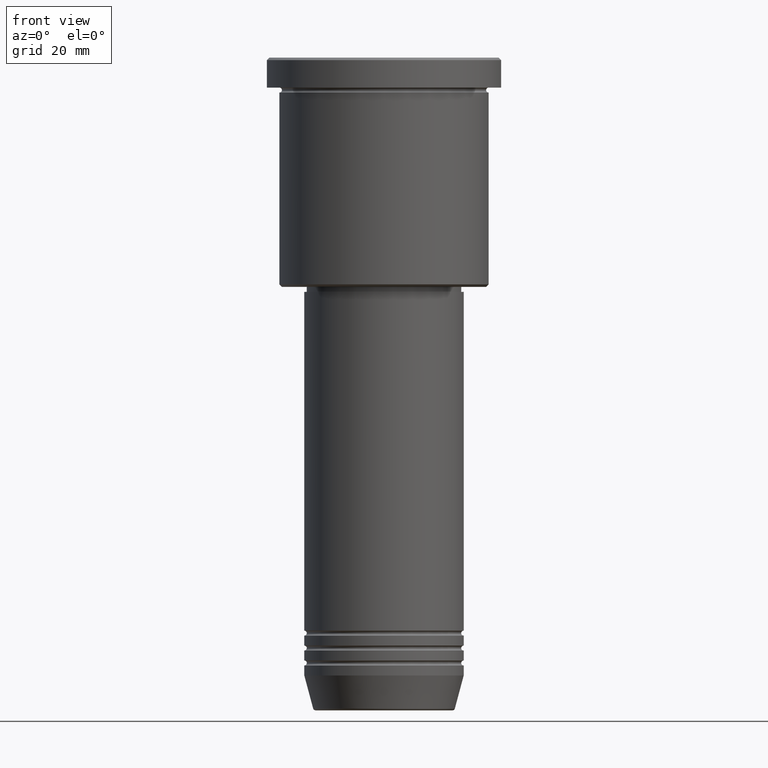
[diagram: clean part render]
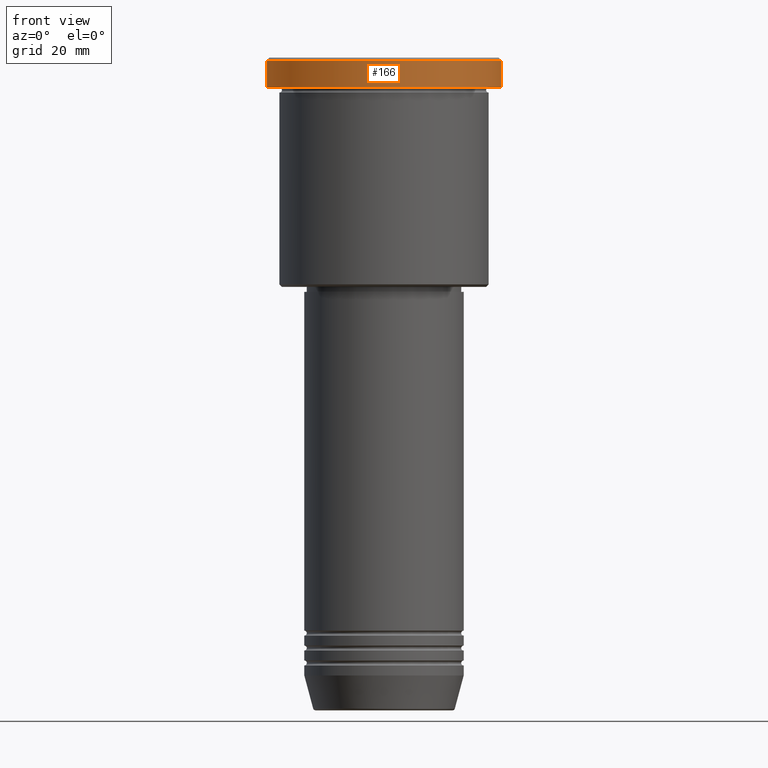
[diagram: same view with one face highlighted and labeled with its STEP entity id]
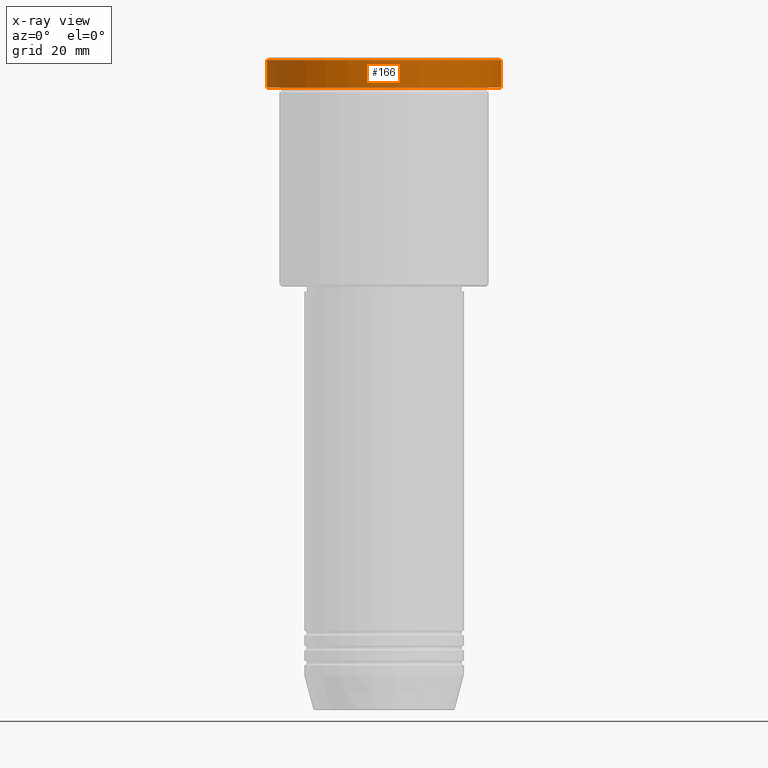
[diagram: x-ray of the same camera — body ghosted, the highlighted face saturated]
A machine part, front view. The second image highlights one B-rep face of the part: STEP entity #166.
The next image is the same camera in x-ray: the body ghosted, the highlighted face saturated — about 0% of this face is hidden behind the body in this view.
In plain terms, the highlighted cylindrical surface (partial cylindrical patch) has radius 23.5 mm, axis along (-0, -0, 1).
Its self-contained STEP definition (entity closure, byte-faithful):
#80 = VECTOR ( 'NONE', #200, 1000.000000000000000 ) ;
#84 = ORIENTED_EDGE ( 'NONE', *, *, #848, .F. ) ;
#87 = EDGE_CURVE ( 'NONE', #444, #761, #343, .T. ) ;
#166 = ADVANCED_FACE ( 'NONE', ( #775 ), #319, .T. ) ;
#182 = CARTESIAN_POINT ( 'NONE',  ( -23.50000000000000000, 2.877919977996280320E-15, -0.5000000000000143219 ) ) ;
#200 = DIRECTION ( 'NONE',  ( -0.000000000000000000, -0.000000000000000000, 1.000000000000000000 ) ) ;
#319 = CYLINDRICAL_SURFACE ( 'NONE', #512, 23.50000000000000000 ) ;
#343 = LINE ( 'NONE', #362, #450 ) ;
#362 = CARTESIAN_POINT ( 'NONE',  ( 23.50000000000000000, 0.000000000000000000, 0.000000000000000000 ) ) ;
#413 = CARTESIAN_POINT ( 'NONE',  ( -23.50000000000000000, 2.877919977996280320E-15, -5.999999999999994671 ) ) ;
#420 = DIRECTION ( 'NONE',  ( 1.000000000000000000, 0.000000000000000000, 0.000000000000000000 ) ) ;
#444 = VERTEX_POINT ( 'NONE', #497 ) ;
#450 = VECTOR ( 'NONE', #1164, 1000.000000000000000 ) ;
#465 = EDGE_CURVE ( 'NONE', #962, #444, #1001, .T. ) ;
#489 = AXIS2_PLACEMENT_3D ( 'NONE', #1182, #626, #420 ) ;
#493 = DIRECTION ( 'NONE',  ( 1.000000000000000000, 0.000000000000000000, 0.000000000000000000 ) ) ;
#497 = CARTESIAN_POINT ( 'NONE',  ( 23.50000000000000000, 0.000000000000000000, -5.999999999999994671 ) ) ;
#512 = AXIS2_PLACEMENT_3D ( 'NONE', #1144, #1044, #879 ) ;
#544 = CIRCLE ( 'NONE', #895, 23.50000000000000000 ) ;
#626 = DIRECTION ( 'NONE',  ( -0.000000000000000000, -0.000000000000000000, 1.000000000000000000 ) ) ;
#670 = VERTEX_POINT ( 'NONE', #182 ) ;
#760 = LINE ( 'NONE', #862, #80 ) ;
#761 = VERTEX_POINT ( 'NONE', #924 ) ;
#775 = FACE_OUTER_BOUND ( 'NONE', #1052, .T. ) ;
#800 = ORIENTED_EDGE ( 'NONE', *, *, #829, .T. ) ;
#829 = EDGE_CURVE ( 'NONE', #761, #670, #544, .T. ) ;
#848 = EDGE_CURVE ( 'NONE', #962, #670, #760, .T. ) ;
#862 = CARTESIAN_POINT ( 'NONE',  ( -23.50000000000000000, 2.877919977996280320E-15, 0.000000000000000000 ) ) ;
#879 = DIRECTION ( 'NONE',  ( 1.000000000000000000, 0.000000000000000000, 0.000000000000000000 ) ) ;
#895 = AXIS2_PLACEMENT_3D ( 'NONE', #936, #964, #493 ) ;
#904 = ORIENTED_EDGE ( 'NONE', *, *, #465, .T. ) ;
#924 = CARTESIAN_POINT ( 'NONE',  ( 23.50000000000000000, 0.000000000000000000, -0.5000000000000143219 ) ) ;
#936 = CARTESIAN_POINT ( 'NONE',  ( 0.000000000000000000, 0.000000000000000000, -0.5000000000000143219 ) ) ;
#962 = VERTEX_POINT ( 'NONE', #413 ) ;
#964 = DIRECTION ( 'NONE',  ( 0.000000000000000000, 0.000000000000000000, -1.000000000000000000 ) ) ;
#1001 = CIRCLE ( 'NONE', #489, 23.50000000000000000 ) ;
#1043 = ORIENTED_EDGE ( 'NONE', *, *, #87, .T. ) ;
#1044 = DIRECTION ( 'NONE',  ( -0.000000000000000000, -0.000000000000000000, 1.000000000000000000 ) ) ;
#1052 = EDGE_LOOP ( 'NONE', ( #84, #904, #1043, #800 ) ) ;
#1144 = CARTESIAN_POINT ( 'NONE',  ( 0.000000000000000000, 0.000000000000000000, 0.000000000000000000 ) ) ;
#1164 = DIRECTION ( 'NONE',  ( -0.000000000000000000, -0.000000000000000000, 1.000000000000000000 ) ) ;
#1182 = CARTESIAN_POINT ( 'NONE',  ( 0.000000000000000000, 0.000000000000000000, -5.999999999999994671 ) ) ;